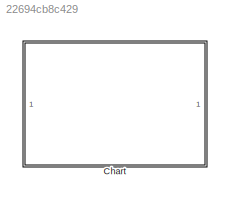
MODEL slx_22694cb8c429
KIND model
CONFIG AbsTol = auto
CONFIG EnableMultiTasking = off
CONFIG FixedStep = auto
CONFIG MaxStep = auto
CONFIG MinStep = auto
CONFIG RelTol = 1e-3
CONFIG SampleTimeConstraint = Unconstrained
CONFIG SolverName = FixedStepAuto
CONFIG StartTime = 0.0
CONFIG StopTime = 10.0
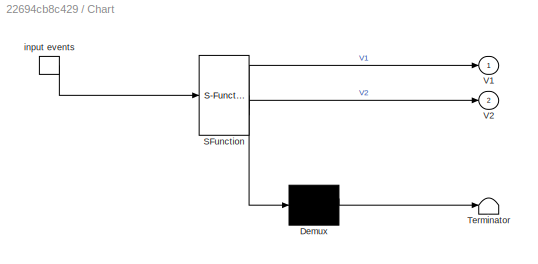
BLOCK [SubSystem] Chart
  ErrorFcn = Stateflow.Translate.translate
  PermitHierarchicalResolution = ExplicitOnly
  SFBlockType = Chart
  TreatAsAtomicUnit = on
BLOCK [Demux] Chart/ Demux 
  Outputs = 1
BLOCK [S-Function] Chart/ SFunction 
  EnableBusSupport = on
  FunctionName = sf_sfun
  PortCounts = [1 3]
  SFcnIsStateOwnerBlock = off
  SFunctionDeploymentMode = off
  Tag = Stateflow S-Function 3
BLOCK [Terminator] Chart/ Terminator 
BLOCK [Outport] Chart/V1
BLOCK [Outport] Chart/V2
  Port = 2
BLOCK [TriggerPort] Chart/input events
  ShowOutputPort = on
  StatesWhenEnabling = held
  VariantControl = (inherit)
CHART Chart states=6 transitions=15
  STATE_LABEL 'On'
  STATE_LABEL 'RightLow\nentry:\nV1  = temp - 20;\nV2 = 10;\n'
  STATE_LABEL 'RighHigh\nentry:\nV1  = temp - 20;\nV2 = 20;'
  STATE_LABEL 'LeftLow\nentry:\nV1  = temp - 20;\nV2 = -10;'
  STATE_LABEL 'LeftHigh\nentry:\nV1  = temp - 20;\nV2 = -20;'
  STATE_LABEL '{counter = counter + 1}'
  STATE_LABEL '[SS == 1]'
  STATE_LABEL '{counter = counter +1}'
  STATE_LABEL '[SS == 0]'
  STATE_LABEL '[counter >= 10]{counter = 0}'
  STATE_LABEL '[counter >= 10]{counter = 0}'
  STATE_LABEL '[counter >= 5]{counter = 0}'
  STATE_LABEL '[counter >= 5]{counter = 0}'
  STATE_LABEL '[SS == 1]'
  STATE_LABEL '{counter = counter +1}'
  STATE_LABEL '[SS == 0]'
  STATE_LABEL 'RightLow\nentry:\nV1  = temp - 20;\nV2 = 10;\n'
  STATE_LABEL 'RighHigh\nentry:\nV1  = temp - 20;\nV2 = 20;'
  STATE_LABEL 'LeftLow\nentry:\nV1  = temp - 20;\nV2 = -10;'
  STATE_LABEL 'LeftHigh\nentry:\nV1  = temp - 20;\nV2 = -20;'
  STATE_LABEL 'Off\nentry:\nV1 = 0;\nV2 = 0;\ncounter = 0;'
CHART  states=0 transitions=0
